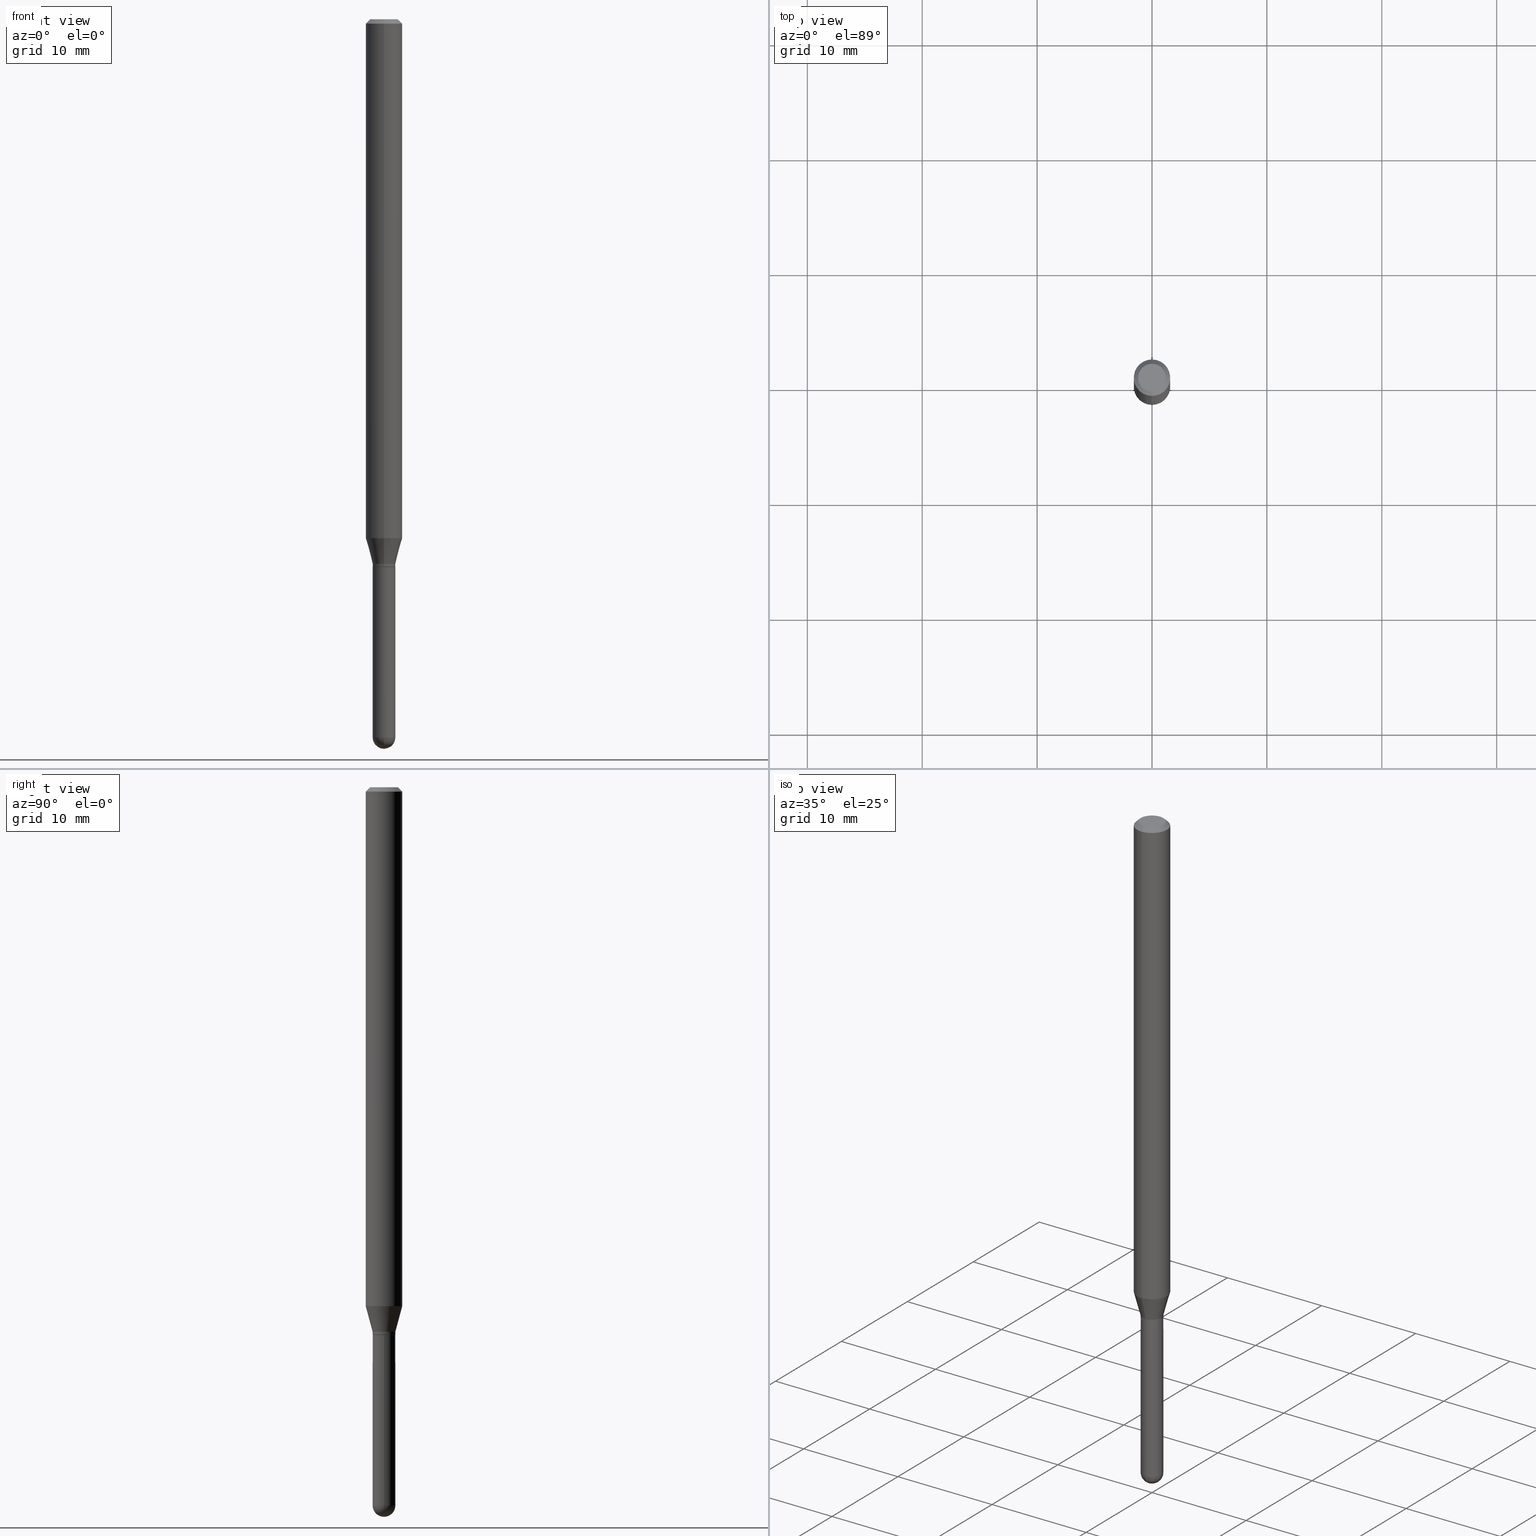
[diagram: canonical four-view strip — front | top / right | iso, engineering-drawing reading convention]
A machine part, canonical four-view strip (front | top / right | iso — engineering-drawing reading convention). The complete STEP part file that produces these views, byte-faithful:
ISO-10303-21;
HEADER;
FILE_DESCRIPTION (( 'STEP AP203' ),
    '1' );
FILE_NAME ('02764.STEP',
    '2024-03-07T21:19:49',
    ( '' ),
    ( '' ),
    'SwSTEP 2.0',
    'SolidWorks 2023',
    '' );
FILE_SCHEMA (( 'CONFIG_CONTROL_DESIGN' ));
ENDSEC;

DATA;
#1 = DIRECTION ( 'NONE',  ( -2.445468806185136597E-29, 3.491481338843145583E-15, 1.000000000000000000 ) ) ;
#2 = DIRECTION ( 'NONE',  ( -2.445445319394689421E-29, 3.491514973263850960E-15, 1.000000000000000000 ) ) ;
#3 = ADVANCED_FACE ( 'NONE', ( #484 ), #376, .T. ) ;
#4 = AXIS2_PLACEMENT_3D ( 'NONE', #266, #136, #378 ) ;
#5 = CARTESIAN_POINT ( 'NONE',  ( 2.735589532676843219E-16, 0.03849999999999344918, -1.876000000000000334 ) ) ;
#6 = DIRECTION ( 'NONE',  ( -2.445445319394689421E-29, 3.491514973263850960E-15, 1.000000000000000000 ) ) ;
#7 = AXIS2_PLACEMENT_3D ( 'NONE', #492, #26, #281 ) ;
#8 = DIRECTION ( 'NONE',  ( -2.445445319394689421E-29, 3.491514973263850960E-15, 1.000000000000000000 ) ) ;
#9 = VERTEX_POINT ( 'NONE', #100 ) ;
#10 = AXIS2_PLACEMENT_3D ( 'NONE', #206, #2, #407 ) ;
#11 = DIRECTION ( 'NONE',  ( -1.000000000000000000, 6.982962677686265922E-15, -4.883557194083112340E-29 ) ) ;
#12 = ORIENTED_EDGE ( 'NONE', *, *, #13, .T. ) ;
#13 = EDGE_CURVE ( 'NONE', #331, #55, #332, .T. ) ;
#14 = DIRECTION ( 'NONE',  ( -2.445445319394689421E-29, 3.491514973263850960E-15, 1.000000000000000000 ) ) ;
#15 = ORIENTED_EDGE ( 'NONE', *, *, #110, .T. ) ;
#16 = ORIENTED_EDGE ( 'NONE', *, *, #263, .T. ) ;
#17 = ORIENTED_EDGE ( 'NONE', *, *, #46, .F. ) ;
#18 = CIRCLE ( 'NONE', #305, 0.03899999999999999994 ) ;
#19 = AXIS2_PLACEMENT_3D ( 'NONE', #222, #429, #158 ) ;
#20 = CIRCLE ( 'NONE', #333, 0.03900000000000018729 ) ;
#21 = DIRECTION ( 'NONE',  ( -6.982962677686266711E-15, -1.000000000000000000, 3.491514973263850565E-15 ) ) ;
#22 = CARTESIAN_POINT ( 'NONE',  ( 6.014963583493821915E-29, -8.597311697409657438E-15, -2.461000000000000298 ) ) ;
#23 = FACE_OUTER_BOUND ( 'NONE', #96, .T. ) ;
#24 = FACE_OUTER_BOUND ( 'NONE', #139, .T. ) ;
#25 = CARTESIAN_POINT ( 'NONE',  ( 4.587699480403316722E-29, -6.550018991669741714E-15, -1.876000000000000112 ) ) ;
#26 = DIRECTION ( 'NONE',  ( -2.445468806185136597E-29, 3.491481338843145583E-15, 1.000000000000000000 ) ) ;
#27 = CLOSED_SHELL ( 'NONE', ( #65, #408, #128, #3, #79 ) ) ;
#28 = AXIS2_PLACEMENT_3D ( 'NONE', #359, #38, #510 ) ;
#29 = DIRECTION ( 'NONE',  ( -6.982962677686266711E-15, -1.000000000000000000, 0.000000000000000000 ) ) ;
#30 = CARTESIAN_POINT ( 'NONE',  ( 2.723355444298231876E-16, 0.03899999999999121530, -2.460999999999999854 ) ) ;
#31 = FACE_OUTER_BOUND ( 'NONE', #181, .T. ) ;
#32 = CARTESIAN_POINT ( 'NONE',  ( 4.563200965990491291E-29, -6.515166940110347716E-15, -1.866000000000000325 ) ) ;
#33 = ORIENTED_EDGE ( 'NONE', *, *, #13, .F. ) ;
#34 = CARTESIAN_POINT ( 'NONE',  ( 8.024615104273622339E-45, -1.145724403201368979E-30, -3.281453500771762015E-16 ) ) ;
#35 = APPLICATION_CONTEXT ( 'configuration controlled 3d designs of mechanical parts and assemblies' ) ;
#36 = DIRECTION ( 'NONE',  ( -2.445445319394689421E-29, 3.491514973263850960E-15, 1.000000000000000000 ) ) ;
#37 = EDGE_CURVE ( 'NONE', #67, #258, #356, .T. ) ;
#38 = DIRECTION ( 'NONE',  ( -2.445445319394689421E-29, 3.491514973263850960E-15, 1.000000000000000000 ) ) ;
#39 = ORIENTED_EDGE ( 'NONE', *, *, #441, .T. ) ;
#40 = AXIS2_PLACEMENT_3D ( 'NONE', #395, #353, #467 ) ;
#41 = VECTOR ( 'NONE', #389, 39.37007874015748143 ) ;
#42 = APPROVAL_DATE_TIME ( #249, #89 ) ;
#43 = APPLICATION_PROTOCOL_DEFINITION ( 'international standard', 'config_control_design', 1994, #133 ) ;
#44 = CARTESIAN_POINT ( 'NONE',  ( 2.771116669464859600E-16, 0.03899999999999367167, -1.866000000000000325 ) ) ;
#45 = DIRECTION ( 'NONE',  ( -2.445445319394689421E-29, 3.491514973263850960E-15, 1.000000000000000000 ) ) ;
#46 = EDGE_CURVE ( 'NONE', #258, #394, #399, .T. ) ;
#47 = PERSON_AND_ORGANIZATION ( #148, #309 ) ;
#48 = DIRECTION ( 'NONE',  ( 2.438088387897960049E-29, -3.491481338843145188E-15, -1.000000000000000000 ) ) ;
#49 = DATE_AND_TIME ( #123, #390 ) ;
#50 = CONICAL_SURFACE ( 'NONE', #282, 0.06250000000000000000, 0.7853981633974483900 ) ;
#51 = CARTESIAN_POINT ( 'NONE',  ( 4.587655419184438048E-29, -6.550082089842985666E-15, -1.876000000000000334 ) ) ;
#52 = CARTESIAN_POINT ( 'NONE',  ( 4.348727600781349997E-29, -6.208949925133558154E-15, -1.778296806022132692 ) ) ;
#53 = EDGE_CURVE ( 'NONE', #394, #482, #18, .T. ) ;
#54 = CARTESIAN_POINT ( 'NONE',  ( 8.024615104273622339E-45, -1.145724403201368979E-30, -3.281453500771762015E-16 ) ) ;
#55 = VERTEX_POINT ( 'NONE', #503 ) ;
#56 = DIRECTION ( 'NONE',  ( -1.000000000000000000, 7.105427357601001070E-15, -4.926315508542082329E-29 ) ) ;
#57 = AXIS2_PLACEMENT_3D ( 'NONE', #465, #1, #168 ) ;
#58 = ORIENTED_EDGE ( 'NONE', *, *, #46, .T. ) ;
#59 = AXIS2_PLACEMENT_3D ( 'NONE', #88, #365, #288 ) ;
#60 = APPROVAL_PERSON_ORGANIZATION ( #430, #89, #512 ) ;
#61 = EDGE_LOOP ( 'NONE', ( #416, #12 ) ) ;
#62 = CYLINDRICAL_SURFACE ( 'NONE', #493, 0.06250000000000000000 ) ;
#63 = ORIENTED_EDGE ( 'NONE', *, *, #262, .F. ) ;
#64 = ORIENTED_EDGE ( 'NONE', *, *, #423, .F. ) ;
#65 = ADVANCED_FACE ( 'NONE', ( #159 ), #308, .T. ) ;
#66 = ORIENTED_EDGE ( 'NONE', *, *, #166, .T. ) ;
#67 = VERTEX_POINT ( 'NONE', #471 ) ;
#68 = DIRECTION ( 'NONE',  ( 6.982962677686265922E-15, 1.000000000000000000, 0.000000000000000000 ) ) ;
#69 = AXIS2_PLACEMENT_3D ( 'NONE', #115, #299, #163 ) ;
#70 = PRODUCT_DEFINITION_SHAPE ( 'NONE', 'NONE',  #450 ) ;
#71 = FACE_OUTER_BOUND ( 'NONE', #220, .T. ) ;
#72 = LINE ( 'NONE', #80, #162 ) ;
#73 = EDGE_LOOP ( 'NONE', ( #271, #257, #17, #397 ) ) ;
#74 = ORIENTED_EDGE ( 'NONE', *, *, #449, .F. ) ;
#75 = CIRCLE ( 'NONE', #69, 0.06250000000000000000 ) ;
#76 = CARTESIAN_POINT ( 'NONE',  ( -4.364351673553483807E-16, -0.06250000000000624500, -1.778296806022132470 ) ) ;
#77 = DIRECTION ( 'NONE',  ( -2.445468806185136597E-29, 3.491481338843145583E-15, 1.000000000000000000 ) ) ;
#78 = DIRECTION ( 'NONE',  ( -2.445445319394689421E-29, 3.491514973263850960E-15, 1.000000000000000000 ) ) ;
#79 = ADVANCED_FACE ( 'NONE', ( #314 ), #81, .T. ) ;
#80 = CARTESIAN_POINT ( 'NONE',  ( -4.364351673553916201E-16, -0.06250000000000000000, 2.182196858289906850E-16 ) ) ;
#81 = CYLINDRICAL_SURFACE ( 'NONE', #338, 0.03899999999999999994 ) ;
#82 = AXIS2_PLACEMENT_3D ( 'NONE', #54, #134, #260 ) ;
#83 = CALENDAR_DATE ( 2024, 7, 3 ) ;
#84 = ADVANCED_FACE ( 'NONE', ( #111 ), #62, .T. ) ;
#85 = PERSON_AND_ORGANIZATION_ROLE ( 'classification_officer' ) ;
#86 = LINE ( 'NONE', #254, #99 ) ;
#87 = PERSON_AND_ORGANIZATION_ROLE ( 'creator' ) ;
#88 = CARTESIAN_POINT ( 'NONE',  ( 4.563200965990491291E-29, -6.515166940110347716E-15, -1.866000000000000325 ) ) ;
#89 = APPROVAL ( #468, 'UNSPECIFIED' ) ;
#90 = AXIS2_PLACEMENT_3D ( 'NONE', #284, #8, #176 ) ;
#91 = PRODUCT_DEFINITION_FORMATION_WITH_SPECIFIED_SOURCE ( 'ANY', '', #478, .NOT_KNOWN. ) ;
#92 = ORIENTED_EDGE ( 'NONE', *, *, #232, .T. ) ;
#93 = VERTEX_POINT ( 'NONE', #241 ) ;
#94 = CARTESIAN_POINT ( 'NONE',  ( 2.723355444298102207E-16, 0.03899999999999344963, -1.876000000000000112 ) ) ;
#95 = CIRCLE ( 'NONE', #237, 0.03899999999999961831 ) ;
#96 = EDGE_LOOP ( 'NONE', ( #427, #294, #489, #261 ) ) ;
#97 = EDGE_CURVE ( 'NONE', #452, #67, #95, .T. ) ;
#98 = CC_DESIGN_PERSON_AND_ORGANIZATION_ASSIGNMENT ( #398, #87, ( #450 ) ) ;
#99 = VECTOR ( 'NONE', #103, 39.37007874015748143 ) ;
#100 = CARTESIAN_POINT ( 'NONE',  ( 0.03899999999999999994, -6.822354536099505737E-15, -1.876000000000000112 ) ) ;
#101 = EDGE_LOOP ( 'NONE', ( #195, #253, #189, #178 ) ) ;
#102 = CARTESIAN_POINT ( 'NONE',  ( 6.014963583493821915E-29, -8.597311697409657438E-15, -2.461000000000000298 ) ) ;
#103 = DIRECTION ( 'NONE',  ( -4.851104656540964275E-15, -0.7071067811865500152, -0.7071067811865450192 ) ) ;
#104 = UNCERTAINTY_MEASURE_WITH_UNIT (LENGTH_MEASURE( 1.000000000000000082E-05 ), #233, 'distance_accuracy_value', 'NONE');
#105 = CARTESIAN_POINT ( 'NONE',  ( 4.587655419184438048E-29, -6.550082089842985666E-15, -1.876000000000000334 ) ) ;
#106 = VERTEX_POINT ( 'NONE', #445 ) ;
#107 = AXIS2_PLACEMENT_3D ( 'NONE', #196, #154, #295 ) ;
#108 = DIRECTION ( 'NONE',  ( -1.807323732225330139E-15, -0.2588190451025181860, 0.9659258262890689783 ) ) ;
#109 = LOCAL_TIME ( 16, 19, 49.00000000000000000, #170 ) ;
#110 = EDGE_CURVE ( 'NONE', #186, #221, #321, .T. ) ;
#111 = FACE_OUTER_BOUND ( 'NONE', #286, .T. ) ;
#112 = DIRECTION ( 'NONE',  ( 2.445445319394689421E-29, -3.491514973263850960E-15, -1.000000000000000000 ) ) ;
#113 = EDGE_LOOP ( 'NONE', ( #290, #287, #367, #302, #58 ) ) ;
#114 = DIRECTION ( 'NONE',  ( 4.937700262164548042E-15, 0.7071067811865451302, -0.7071067811865499042 ) ) ;
#115 = CARTESIAN_POINT ( 'NONE',  ( 3.668167979092114251E-31, -5.237272459895891490E-17, -0.01500000000000032904 ) ) ;
#116 = AXIS2_PLACEMENT_3D ( 'NONE', #34, #45, #303 ) ;
#117 = CIRCLE ( 'NONE', #358, 0.03900000000000019423 ) ;
#118 = DIRECTION ( 'NONE',  ( -6.982962677686266711E-15, -1.000000000000000000, 0.000000000000000000 ) ) ;
#119 = ADVANCED_FACE ( 'NONE', ( #251 ), #223, .T. ) ;
#120 = CARTESIAN_POINT ( 'NONE',  ( 6.018298732021620914E-29, -8.592535574892981353E-15, -2.460999999999999854 ) ) ;
#121 = APPROVAL_ROLE ( '' ) ;
#122 = PLANE ( 'NONE',  #160 ) ;
#123 = CALENDAR_DATE ( 2024, 7, 3 ) ;
#124 = PERSON_AND_ORGANIZATION_ROLE ( 'design_supplier' ) ;
#125 = LINE ( 'NONE', #280, #470 ) ;
#126 = CARTESIAN_POINT ( 'NONE',  ( 2.753353101070852642E-16, 0.03849999999999344918, -1.876000000000000334 ) ) ;
#127 = CARTESIAN_POINT ( 'NONE',  ( 0.03899999999999999994, -2.723355444297643682E-16, 1.901708942560414931E-30 ) ) ;
#128 = ADVANCED_FACE ( 'NONE', ( #211 ), #122, .F. ) ;
#129 = SECURITY_CLASSIFICATION_LEVEL ( 'unclassified' ) ;
#130 = AXIS2_PLACEMENT_3D ( 'NONE', #51, #215, #327 ) ;
#131 = CIRCLE ( 'NONE', #248, 0.03899999999999999994 ) ;
#132 = EDGE_LOOP ( 'NONE', ( #269, #347, #174, #143 ) ) ;
#133 = APPLICATION_CONTEXT ( 'configuration controlled 3d designs of mechanical parts and assemblies' ) ;
#134 = DIRECTION ( 'NONE',  ( -2.445445319394689421E-29, 3.491514973263850960E-15, 1.000000000000000000 ) ) ;
#135 = DIRECTION ( 'NONE',  ( -6.982962677686265922E-15, -1.000000000000000000, 4.370956789862821150E-15 ) ) ;
#136 = DIRECTION ( 'NONE',  ( -2.445445319394689141E-29, 3.491514973263850960E-15, 1.000000000000000000 ) ) ;
#137 = EDGE_CURVE ( 'NONE', #485, #156, #369, .T. ) ;
#138 = ORIENTED_EDGE ( 'NONE', *, *, #272, .F. ) ;
#139 = EDGE_LOOP ( 'NONE', ( #39, #352, #64, #291 ) ) ;
#140 = CIRCLE ( 'NONE', #10, 0.03900000000000018729 ) ;
#141 = APPROVAL_PERSON_ORGANIZATION ( #47, #243, #276 ) ;
#142 = ORIENTED_EDGE ( 'NONE', *, *, #511, .T. ) ;
#143 = ORIENTED_EDGE ( 'NONE', *, *, #201, .F. ) ;
#144 = EDGE_CURVE ( 'NONE', #258, #9, #172, .T. ) ;
#145 = DIRECTION ( 'NONE',  ( -2.445445319394689421E-29, 3.491514973263850960E-15, 1.000000000000000000 ) ) ;
#146 = ORIENTED_EDGE ( 'NONE', *, *, #214, .T. ) ;
#147 = CYLINDRICAL_SURFACE ( 'NONE', #370, 0.03900000000000018729 ) ;
#148 = PERSON ( 'UNSPECIFIED', 'UNSPECIFIED', 'UNSPECIFIED', ('UNSPECIFIED'), ('UNSPECIFIED'), ('UNSPECIFIED') ) ;
#149 = DIRECTION ( 'NONE',  ( -2.445445319394689421E-29, 3.491514973263850960E-15, 1.000000000000000000 ) ) ;
#150 = AXIS2_PLACEMENT_3D ( 'NONE', #120, #77, #231 ) ;
#151 = DIRECTION ( 'NONE',  ( -6.982962677686266711E-15, -1.000000000000000000, 0.000000000000000000 ) ) ;
#152 = SPHERICAL_SURFACE ( 'NONE', #289, 0.03899999999999961831 ) ;
#153 = CARTESIAN_POINT ( 'NONE',  ( 4.364351673553919652E-16, 0.06249999999999995143, -0.01500000000000054588 ) ) ;
#154 = DIRECTION ( 'NONE',  ( -2.445445319394689421E-29, 3.491514973263850960E-15, 1.000000000000000000 ) ) ;
#155 = CC_DESIGN_DATE_AND_TIME_ASSIGNMENT ( #316, #313, ( #450 ) ) ;
#156 = VERTEX_POINT ( 'NONE', #439 ) ;
#157 = DIRECTION ( 'NONE',  ( -2.445445319394689421E-29, 3.491514973263850960E-15, 1.000000000000000000 ) ) ;
#158 = DIRECTION ( 'NONE',  ( 6.982962677686265922E-15, 1.000000000000000000, -3.491514973263850960E-15 ) ) ;
#159 = FACE_OUTER_BOUND ( 'NONE', #113, .T. ) ;
#160 = AXIS2_PLACEMENT_3D ( 'NONE', #94, #48, #409 ) ;
#161 = CARTESIAN_POINT ( 'NONE',  ( 4.563200965990491291E-29, -6.515166940110347716E-15, -1.866000000000000325 ) ) ;
#162 = VECTOR ( 'NONE', #462, 39.37007874015748143 ) ;
#163 = DIRECTION ( 'NONE',  ( -6.982962677686265922E-15, -1.000000000000000000, 3.483106191921935554E-15 ) ) ;
#164 = LINE ( 'NONE', #44, #418 ) ;
#165 = DATE_TIME_ROLE ( 'classification_date' ) ;
#166 = EDGE_CURVE ( 'NONE', #482, #67, #264, .T. ) ;
#167 = CALENDAR_DATE ( 2024, 7, 3 ) ;
#168 = DIRECTION ( 'NONE',  ( 1.000000000000000000, -6.982962677686265922E-15, 4.876176775795935793E-29 ) ) ;
#169 = VECTOR ( 'NONE', #114, 39.37007874015748143 ) ;
#170 = COORDINATED_UNIVERSAL_TIME_OFFSET ( 5, 0, .BEHIND. ) ;
#171 = SECURITY_CLASSIFICATION ( '', '', #129 ) ;
#172 = LINE ( 'NONE', #127, #477 ) ;
#173 = COORDINATED_UNIVERSAL_TIME_OFFSET ( 5, 0, .BEHIND. ) ;
#174 = ORIENTED_EDGE ( 'NONE', *, *, #312, .T. ) ;
#175 = AXIS2_PLACEMENT_3D ( 'NONE', #52, #212, #500 ) ;
#176 = DIRECTION ( 'NONE',  ( -6.982962677686266711E-15, -1.000000000000000000, 0.000000000000000000 ) ) ;
#177 = EDGE_LOOP ( 'NONE', ( #320, #142 ) ) ;
#178 = ORIENTED_EDGE ( 'NONE', *, *, #368, .F. ) ;
#179 = EDGE_LOOP ( 'NONE', ( #421, #66, #326, #270, #387 ) ) ;
#180 = EDGE_CURVE ( 'NONE', #55, #331, #296, .T. ) ;
#181 = EDGE_LOOP ( 'NONE', ( #411, #415, #341, #451 ) ) ;
#182 = ORIENTED_EDGE ( 'NONE', *, *, #423, .T. ) ;
#183 = AXIS2_PLACEMENT_3D ( 'NONE', #383, #78, #297 ) ;
#184 = CARTESIAN_POINT ( 'NONE',  ( 0.03899999999999999994, -7.843612827711125557E-15, -2.460999999999999854 ) ) ;
#185 = DIRECTION ( 'NONE',  ( -2.445445319394689421E-29, 3.491514973263850960E-15, 1.000000000000000000 ) ) ;
#186 = VERTEX_POINT ( 'NONE', #420 ) ;
#187 = PLANE ( 'NONE',  #4 ) ;
#188 = DIRECTION ( 'NONE',  ( 6.982962677686265922E-15, 1.000000000000000000, -3.483106191921935554E-15 ) ) ;
#189 = ORIENTED_EDGE ( 'NONE', *, *, #262, .T. ) ;
#190 = EDGE_CURVE ( 'NONE', #9, #93, #273, .T. ) ;
#191 = CARTESIAN_POINT ( 'NONE',  ( 0.000000000000000000, 0.000000000000000000, 0.000000000000000000 ) ) ;
#192 = DIRECTION ( 'NONE',  ( 1.000000000000000000, -6.982962677686265922E-15, 4.883557194083112340E-29 ) ) ;
#193 = CARTESIAN_POINT ( 'NONE',  ( 3.668167979092114251E-31, -5.237272459895891490E-17, -0.01500000000000032904 ) ) ;
#194 = DIRECTION ( 'NONE',  ( -2.445445319394689421E-29, 3.491514973263850960E-15, 1.000000000000000000 ) ) ;
#195 = ORIENTED_EDGE ( 'NONE', *, *, #232, .F. ) ;
#196 = CARTESIAN_POINT ( 'NONE',  ( 0.000000000000000000, 0.000000000000000000, 0.000000000000000000 ) ) ;
#197 = APPROVAL_PERSON_ORGANIZATION ( #472, #444, #121 ) ;
#198 = EDGE_CURVE ( 'NONE', #452, #394, #380, .T. ) ;
#199 = CARTESIAN_POINT ( 'NONE',  ( 3.606004383982960804E-16, 0.03899999999999367167, -1.866000000000000325 ) ) ;
#200 = FACE_OUTER_BOUND ( 'NONE', #443, .T. ) ;
#201 = EDGE_CURVE ( 'NONE', #486, #324, #140, .T. ) ;
#202 = CARTESIAN_POINT ( 'NONE',  ( -0.03899999999999999994, -7.294165616334921426E-15, -2.460999999999999854 ) ) ;
#203 = DIRECTION ( 'NONE',  ( -2.445468806185136597E-29, 3.491481338843145583E-15, 1.000000000000000000 ) ) ;
#204 = CARTESIAN_POINT ( 'NONE',  ( 2.771116669464852698E-16, 0.03899999999999351208, -1.875500000000000167 ) ) ;
#205 = CIRCLE ( 'NONE', #210, 0.06250000000000000000 ) ;
#206 = CARTESIAN_POINT ( 'NONE',  ( 4.563200965990491291E-29, -6.515166940110347716E-15, -1.866000000000000325 ) ) ;
#207 = CARTESIAN_POINT ( 'NONE',  ( 6.014963583493821915E-29, -8.597311697409657438E-15, -2.461000000000000298 ) ) ;
#208 = COORDINATED_UNIVERSAL_TIME_OFFSET ( 5, 0, .BEHIND. ) ;
#209 = LINE ( 'NONE', #5, #447 ) ;
#210 = AXIS2_PLACEMENT_3D ( 'NONE', #323, #481, #135 ) ;
#211 = FACE_OUTER_BOUND ( 'NONE', #177, .T. ) ;
#212 = DIRECTION ( 'NONE',  ( -2.445445319394689421E-29, 3.491514973263850960E-15, 1.000000000000000000 ) ) ;
#213 = PERSON_AND_ORGANIZATION ( #148, #309 ) ;
#214 = EDGE_CURVE ( 'NONE', #508, #485, #425, .T. ) ;
#215 = DIRECTION ( 'NONE',  ( -2.445445319394689421E-29, 3.491514973263850960E-15, 1.000000000000000000 ) ) ;
#216 = EDGE_LOOP ( 'NONE', ( #366, #252, #375, #379 ) ) ;
#217 = PRODUCT_RELATED_PRODUCT_CATEGORY ( 'detail', '', ( #478 ) ) ;
#218 = DIRECTION ( 'NONE',  ( -2.445445319394689421E-29, 3.491514973263850960E-15, 1.000000000000000000 ) ) ;
#219 = AXIS2_PLACEMENT_3D ( 'NONE', #105, #194, #422 ) ;
#220 = EDGE_LOOP ( 'NONE', ( #182, #92, #334, #63 ) ) ;
#221 = VERTEX_POINT ( 'NONE', #126 ) ;
#222 = CARTESIAN_POINT ( 'NONE',  ( 3.316907271900976096E-16, 0.04749999999999999362, -3.299196362686209740E-16 ) ) ;
#223 = CONICAL_SURFACE ( 'NONE', #130, 0.03849999999999999256, 0.7853981633974739252 ) ;
#224 = VECTOR ( 'NONE', #108, 39.37007874015748143 ) ;
#225 = FACE_OUTER_BOUND ( 'NONE', #216, .T. ) ;
#226 = ORIENTED_EDGE ( 'NONE', *, *, #454, .F. ) ;
#227 = CC_DESIGN_PERSON_AND_ORGANIZATION_ASSIGNMENT ( #349, #339, ( #478 ) ) ;
#228 = DIRECTION ( 'NONE',  ( -2.445468806185136597E-29, 3.491481338843145583E-15, 1.000000000000000000 ) ) ;
#229 = CARTESIAN_POINT ( 'NONE',  ( -2.688440630908753113E-16, -0.03850000000000654288, -1.876000000000000334 ) ) ;
#230 = DIRECTION ( 'NONE',  ( 1.000000000000000000, 0.000000000000000000, 0.000000000000000000 ) ) ;
#231 = DIRECTION ( 'NONE',  ( 1.000000000000000000, -6.982962677686283277E-15, 0.000000000000000000 ) ) ;
#232 = EDGE_CURVE ( 'NONE', #486, #485, #164, .T. ) ;
#233 =( CONVERSION_BASED_UNIT ( 'INCH', #393 ) LENGTH_UNIT ( ) NAMED_UNIT ( #507 ) );
#234 = PERSON_AND_ORGANIZATION ( #148, #309 ) ;
#235 = ORIENTED_EDGE ( 'NONE', *, *, #110, .F. ) ;
#236 = EDGE_CURVE ( 'NONE', #331, #106, #86, .T. ) ;
#237 = AXIS2_PLACEMENT_3D ( 'NONE', #207, #56, #245 ) ;
#238 = CONICAL_SURFACE ( 'NONE', #219, 0.03849999999999999256, 0.7853981633974739252 ) ;
#239 = ADVANCED_BREP_SHAPE_REPRESENTATION ( '02764', ( #329, #317, #413 ), #340 ) ;
#240 = COORDINATED_UNIVERSAL_TIME_OFFSET ( 5, 0, .BEHIND. ) ;
#241 = CARTESIAN_POINT ( 'NONE',  ( -0.03899999999999999994, -7.294165616334921426E-15, -1.876000000000000112 ) ) ;
#242 = DATE_AND_TIME ( #436, #488 ) ;
#243 = APPROVAL ( #318, 'UNSPECIFIED' ) ;
#244 = PERSON_AND_ORGANIZATION ( #148, #309 ) ;
#245 = DIRECTION ( 'NONE',  ( -7.105427357601000281E-15, -1.000000000000000000, 0.000000000000000000 ) ) ;
#246 = AXIS2_PLACEMENT_3D ( 'NONE', #102, #259, #68 ) ;
#247 = PLANE ( 'NONE',  #19 ) ;
#248 = AXIS2_PLACEMENT_3D ( 'NONE', #267, #228, #501 ) ;
#249 = DATE_AND_TIME ( #167, #480 ) ;
#250 = VERTEX_POINT ( 'NONE', #491 ) ;
#251 = FACE_OUTER_BOUND ( 'NONE', #256, .T. ) ;
#252 = ORIENTED_EDGE ( 'NONE', *, *, #180, .F. ) ;
#253 = ORIENTED_EDGE ( 'NONE', *, *, #201, .T. ) ;
#254 = CARTESIAN_POINT ( 'NONE',  ( -4.287811248607203282E-16, -0.06250000000000005551, -0.01500000000000011047 ) ) ;
#255 = DIRECTION ( 'NONE',  ( 6.982962677686265922E-15, 1.000000000000000000, 0.000000000000000000 ) ) ;
#256 = EDGE_LOOP ( 'NONE', ( #15, #412, #446, #448 ) ) ;
#257 = ORIENTED_EDGE ( 'NONE', *, *, #198, .T. ) ;
#258 = VERTEX_POINT ( 'NONE', #184 ) ;
#259 = DIRECTION ( 'NONE',  ( -1.000000000000000000, 6.982962677686265922E-15, -4.883557194083112340E-29 ) ) ;
#260 = DIRECTION ( 'NONE',  ( -6.982962677686266711E-15, -1.000000000000000000, 3.491514973263851354E-15 ) ) ;
#261 = ORIENTED_EDGE ( 'NONE', *, *, #473, .F. ) ;
#262 = EDGE_CURVE ( 'NONE', #324, #508, #310, .T. ) ;
#263 = EDGE_CURVE ( 'NONE', #221, #186, #504, .T. ) ;
#264 = CIRCLE ( 'NONE', #7, 0.03899999999999999994 ) ;
#265 = ORIENTED_EDGE ( 'NONE', *, *, #137, .T. ) ;
#266 = CARTESIAN_POINT ( 'NONE',  ( 4.587655419184438048E-29, -6.550082089842985666E-15, -1.876000000000000334 ) ) ;
#267 = CARTESIAN_POINT ( 'NONE',  ( 4.587699480403316722E-29, -6.550018991669741714E-15, -1.876000000000000112 ) ) ;
#268 = DIRECTION ( 'NONE',  ( -2.445468806185136597E-29, 3.491481338843145583E-15, 1.000000000000000000 ) ) ;
#269 = ORIENTED_EDGE ( 'NONE', *, *, #311, .F. ) ;
#270 = ORIENTED_EDGE ( 'NONE', *, *, #144, .T. ) ;
#271 = ORIENTED_EDGE ( 'NONE', *, *, #97, .F. ) ;
#272 = EDGE_CURVE ( 'NONE', #221, #502, #209, .T. ) ;
#273 = CIRCLE ( 'NONE', #438, 0.03899999999999999994 ) ;
#274 = CARTESIAN_POINT ( 'NONE',  ( 4.586432696524740374E-29, -6.548336332356352861E-15, -1.875500000000000167 ) ) ;
#275 = APPLICATION_PROTOCOL_DEFINITION ( 'international standard', 'config_control_design', 1994, #35 ) ;
#276 = APPROVAL_ROLE ( '' ) ;
#277 = AXIS2_PLACEMENT_3D ( 'NONE', #474, #218, #405 ) ;
#278 = DIRECTION ( 'NONE',  ( 1.839019923739600315E-15, 0.2588190451025249583, 0.9659258262890670910 ) ) ;
#279 = EDGE_CURVE ( 'NONE', #482, #93, #125, .T. ) ;
#280 = CARTESIAN_POINT ( 'NONE',  ( -0.03899999999999999994, 2.771116669464390721E-16, -1.918384685199413078E-30 ) ) ;
#281 = DIRECTION ( 'NONE',  ( 1.000000000000000000, -6.982962677686283277E-15, 0.000000000000000000 ) ) ;
#282 = AXIS2_PLACEMENT_3D ( 'NONE', #193, #112, #437 ) ;
#283 = CC_DESIGN_SECURITY_CLASSIFICATION ( #171, ( #91 ) ) ;
#284 = CARTESIAN_POINT ( 'NONE',  ( 4.586432696524740374E-29, -6.548336332356352861E-15, -1.875500000000000167 ) ) ;
#285 = ORIENTED_EDGE ( 'NONE', *, *, #263, .F. ) ;
#286 = EDGE_LOOP ( 'NONE', ( #146, #265, #483, #226 ) ) ;
#287 = ORIENTED_EDGE ( 'NONE', *, *, #279, .T. ) ;
#288 = DIRECTION ( 'NONE',  ( -6.982962677686266711E-15, -1.000000000000000000, 0.000000000000000000 ) ) ;
#289 = AXIS2_PLACEMENT_3D ( 'NONE', #350, #11, #255 ) ;
#290 = ORIENTED_EDGE ( 'NONE', *, *, #53, .T. ) ;
#291 = ORIENTED_EDGE ( 'NONE', *, *, #312, .F. ) ;
#292 = ADVANCED_FACE ( 'NONE', ( #71 ), #432, .T. ) ;
#293 = DESIGN_CONTEXT ( 'detailed design', #133, 'design' ) ;
#294 = ORIENTED_EDGE ( 'NONE', *, *, #368, .T. ) ;
#295 = DIRECTION ( 'NONE',  ( -6.982962677686265922E-15, -1.000000000000000000, 3.491514973263850960E-15 ) ) ;
#296 = CIRCLE ( 'NONE', #82, 0.04749999999999999362 ) ;
#297 = DIRECTION ( 'NONE',  ( -6.982962677686265922E-15, -1.000000000000000000, 3.483106191921935554E-15 ) ) ;
#298 = CYLINDRICAL_SURFACE ( 'NONE', #107, 0.06250000000000000000 ) ;
#299 = DIRECTION ( 'NONE',  ( -2.445445319394689421E-29, 3.491514973263850960E-15, 1.000000000000000000 ) ) ;
#300 = DIRECTION ( 'NONE',  ( 6.982962677686267499E-15, 1.000000000000000000, 0.000000000000000000 ) ) ;
#301 =( LENGTH_UNIT ( ) NAMED_UNIT ( * ) SI_UNIT ( $, .METRE. ) );
#302 = ORIENTED_EDGE ( 'NONE', *, *, #144, .F. ) ;
#303 = DIRECTION ( 'NONE',  ( -6.982962677686266711E-15, -1.000000000000000000, 3.491514973263851354E-15 ) ) ;
#304 = LINE ( 'NONE', #153, #169 ) ;
#305 = AXIS2_PLACEMENT_3D ( 'NONE', #497, #203, #461 ) ;
#306 = ADVANCED_FACE ( 'NONE', ( #386 ), #238, .T. ) ;
#307 = VECTOR ( 'NONE', #145, 39.37007874015748143 ) ;
#308 = CYLINDRICAL_SURFACE ( 'NONE', #57, 0.03899999999999999994 ) ;
#309 = ORGANIZATION ( 'UNSPECIFIED', 'UNSPECIFIED', '' ) ;
#310 = LINE ( 'NONE', #391, #224 ) ;
#311 = EDGE_CURVE ( 'NONE', #502, #486, #346, .T. ) ;
#312 = EDGE_CURVE ( 'NONE', #250, #324, #495, .T. ) ;
#313 = DATE_TIME_ROLE ( 'creation_date' ) ;
#314 = FACE_OUTER_BOUND ( 'NONE', #179, .T. ) ;
#315 = CONICAL_SURFACE ( 'NONE', #59, 0.03900000000000018729, 0.2617993877991502960 ) ;
#316 = DATE_AND_TIME ( #509, #109 ) ;
#317 = MANIFOLD_SOLID_BREP ( 'Body-Move/Copy2[2]', #361 ) ;
#318 = APPROVAL_STATUS ( 'not_yet_approved' ) ;
#319 = SHAPE_DEFINITION_REPRESENTATION ( #70, #239 ) ;
#320 = ORIENTED_EDGE ( 'NONE', *, *, #190, .T. ) ;
#321 = CIRCLE ( 'NONE', #277, 0.03849999999999999256 ) ;
#322 = CIRCLE ( 'NONE', #90, 0.03900000000000019423 ) ;
#323 = CARTESIAN_POINT ( 'NONE',  ( 4.348727600781349997E-29, -6.208949925133558154E-15, -1.778296806022132692 ) ) ;
#324 = VERTEX_POINT ( 'NONE', #457 ) ;
#325 = ORIENTED_EDGE ( 'NONE', *, *, #388, .T. ) ;
#326 = ORIENTED_EDGE ( 'NONE', *, *, #37, .T. ) ;
#327 = DIRECTION ( 'NONE',  ( -6.982962677686266711E-15, -1.000000000000000000, 0.000000000000000000 ) ) ;
#328 = ADVANCED_FACE ( 'NONE', ( #225 ), #50, .T. ) ;
#329 = MANIFOLD_SOLID_BREP ( 'Body-Move/Copy2[1]', #27 ) ;
#330 = DIRECTION ( 'NONE',  ( -6.982962677686265922E-15, -1.000000000000000000, 3.491514973263850960E-15 ) ) ;
#331 = VERTEX_POINT ( 'NONE', #344 ) ;
#332 = CIRCLE ( 'NONE', #116, 0.04749999999999999362 ) ;
#333 = AXIS2_PLACEMENT_3D ( 'NONE', #161, #157, #458 ) ;
#334 = ORIENTED_EDGE ( 'NONE', *, *, #214, .F. ) ;
#335 = ORIENTED_EDGE ( 'NONE', *, *, #464, .T. ) ;
#336 = CARTESIAN_POINT ( 'NONE',  ( 2.771116669464403047E-16, 0.03900000000000018729, -1.361690839572908232E-16 ) ) ;
#337 = ORIENTED_EDGE ( 'NONE', *, *, #357, .F. ) ;
#338 = AXIS2_PLACEMENT_3D ( 'NONE', #342, #268, #414 ) ;
#339 = PERSON_AND_ORGANIZATION_ROLE ( 'design_owner' ) ;
#340 =( GEOMETRIC_REPRESENTATION_CONTEXT ( 3 ) GLOBAL_UNCERTAINTY_ASSIGNED_CONTEXT ( ( #104 ) ) GLOBAL_UNIT_ASSIGNED_CONTEXT ( ( #233, #456, #505 ) ) REPRESENTATION_CONTEXT ( 'NONE', 'WORKASPACE' ) );
#341 = ORIENTED_EDGE ( 'NONE', *, *, #166, .F. ) ;
#342 = CARTESIAN_POINT ( 'NONE',  ( 0.000000000000000000, 0.000000000000000000, 0.000000000000000000 ) ) ;
#343 = ADVANCED_FACE ( 'NONE', ( #498 ), #247, .F. ) ;
#344 = CARTESIAN_POINT ( 'NONE',  ( -3.773273898774340269E-16, -0.04749999999999999362, -1.622983888471432790E-16 ) ) ;
#345 = FACE_OUTER_BOUND ( 'NONE', #496, .T. ) ;
#346 = LINE ( 'NONE', #336, #307 ) ;
#347 = ORIENTED_EDGE ( 'NONE', *, *, #357, .T. ) ;
#348 = CARTESIAN_POINT ( 'NONE',  ( 4.587655419184438048E-29, -6.550082089842985666E-15, -1.876000000000000334 ) ) ;
#349 = PERSON_AND_ORGANIZATION ( #148, #309 ) ;
#350 = CARTESIAN_POINT ( 'NONE',  ( 6.014963583493821915E-29, -8.597311697409657438E-15, -2.461000000000000298 ) ) ;
#351 = ADVANCED_FACE ( 'NONE', ( #396 ), #355, .T. ) ;
#352 = ORIENTED_EDGE ( 'NONE', *, *, #311, .T. ) ;
#353 = DIRECTION ( 'NONE',  ( -2.445468806185136597E-29, 3.491481338843145583E-15, 1.000000000000000000 ) ) ;
#354 = DIRECTION ( 'NONE',  ( 2.445445319394689421E-29, -3.491514973263850960E-15, -1.000000000000000000 ) ) ;
#355 = CYLINDRICAL_SURFACE ( 'NONE', #28, 0.03900000000000018729 ) ;
#356 = CIRCLE ( 'NONE', #150, 0.03899999999999999994 ) ;
#357 = EDGE_CURVE ( 'NONE', #502, #250, #322, .T. ) ;
#358 = AXIS2_PLACEMENT_3D ( 'NONE', #274, #494, #29 ) ;
#359 = CARTESIAN_POINT ( 'NONE',  ( 0.000000000000000000, 0.000000000000000000, 0.000000000000000000 ) ) ;
#360 = APPROVAL_STATUS ( 'not_yet_approved' ) ;
#361 = CLOSED_SHELL ( 'NONE', ( #469, #119, #490, #84, #292, #410, #372, #328, #343, #377, #306, #351 ) ) ;
#362 = AXIS2_PLACEMENT_3D ( 'NONE', #32, #185, #118 ) ;
#363 = CARTESIAN_POINT ( 'NONE',  ( 4.440892098500625669E-16, 0.06250000000000000000, -2.182196858289906850E-16 ) ) ;
#364 = APPROVAL_DATE_TIME ( #49, #444 ) ;
#365 = DIRECTION ( 'NONE',  ( -2.445445319394689421E-29, 3.491514973263850960E-15, 1.000000000000000000 ) ) ;
#366 = ORIENTED_EDGE ( 'NONE', *, *, #236, .F. ) ;
#367 = ORIENTED_EDGE ( 'NONE', *, *, #190, .F. ) ;
#368 = EDGE_CURVE ( 'NONE', #485, #508, #205, .T. ) ;
#369 = LINE ( 'NONE', #363, #417 ) ;
#370 = AXIS2_PLACEMENT_3D ( 'NONE', #191, #36, #21 ) ;
#371 = EDGE_LOOP ( 'NONE', ( #138, #16, #325, #337 ) ) ;
#372 = ADVANCED_FACE ( 'NONE', ( #23 ), #298, .T. ) ;
#373 = CC_DESIGN_PERSON_AND_ORGANIZATION_ASSIGNMENT ( #213, #124, ( #91 ) ) ;
#374 = CARTESIAN_POINT ( 'NONE',  ( 0.000000000000000000, 0.000000000000000000, 0.000000000000000000 ) ) ;
#375 = ORIENTED_EDGE ( 'NONE', *, *, #449, .T. ) ;
#376 = SPHERICAL_SURFACE ( 'NONE', #246, 0.03899999999999961831 ) ;
#377 = ADVANCED_FACE ( 'NONE', ( #200 ), #187, .F. ) ;
#378 = DIRECTION ( 'NONE',  ( -6.982962677686265922E-15, -1.000000000000000000, 3.491514973263850960E-15 ) ) ;
#379 = ORIENTED_EDGE ( 'NONE', *, *, #473, .T. ) ;
#380 = CIRCLE ( 'NONE', #400, 0.03899999999999961831 ) ;
#381 = DIRECTION ( 'NONE',  ( -2.445468806185136597E-29, 3.491481338843145583E-15, 1.000000000000000000 ) ) ;
#382 = CC_DESIGN_APPROVAL ( #444, ( #91 ) ) ;
#383 = CARTESIAN_POINT ( 'NONE',  ( 3.668167979092114251E-31, -5.237272459895891490E-17, -0.01500000000000032904 ) ) ;
#384 = DIRECTION ( 'NONE',  ( -2.445445319394689421E-29, 3.491514973263850960E-15, 1.000000000000000000 ) ) ;
#385 = CARTESIAN_POINT ( 'NONE',  ( 6.112004441198941993E-29, -8.731091408366201407E-15, -2.500000000000000000 ) ) ;
#386 = FACE_OUTER_BOUND ( 'NONE', #371, .T. ) ;
#387 = ORIENTED_EDGE ( 'NONE', *, *, #511, .F. ) ;
#388 = EDGE_CURVE ( 'NONE', #186, #250, #459, .T. ) ;
#389 = DIRECTION ( 'NONE',  ( -4.937700262164674260E-15, -0.7071067811865632269, 0.7071067811865319186 ) ) ;
#390 = LOCAL_TIME ( 16, 19, 49.00000000000000000, #240 ) ;
#391 = CARTESIAN_POINT ( 'NONE',  ( -2.723355444297200441E-16, -0.03900000000000669598, -1.866000000000000325 ) ) ;
#392 = CC_DESIGN_DATE_AND_TIME_ASSIGNMENT ( #242, #165, ( #171 ) ) ;
#393 = LENGTH_MEASURE_WITH_UNIT ( LENGTH_MEASURE( 0.02539999999999999897 ), #301 );
#394 = VERTEX_POINT ( 'NONE', #30 ) ;
#395 = CARTESIAN_POINT ( 'NONE',  ( 6.018298732021620914E-29, -8.592535574892981353E-15, -2.460999999999999854 ) ) ;
#396 = FACE_OUTER_BOUND ( 'NONE', #132, .T. ) ;
#397 = ORIENTED_EDGE ( 'NONE', *, *, #37, .F. ) ;
#398 = PERSON_AND_ORGANIZATION ( #148, #309 ) ;
#399 = CIRCLE ( 'NONE', #40, 0.03899999999999999994 ) ;
#400 = AXIS2_PLACEMENT_3D ( 'NONE', #22, #192, #300 ) ;
#401 = LOCAL_TIME ( 16, 19, 49.00000000000000000, #208 ) ;
#402 = COORDINATED_UNIVERSAL_TIME_OFFSET ( 5, 0, .BEHIND. ) ;
#403 = DATE_AND_TIME ( #83, #401 ) ;
#404 = CC_DESIGN_PERSON_AND_ORGANIZATION_ASSIGNMENT ( #244, #434, ( #91 ) ) ;
#405 = DIRECTION ( 'NONE',  ( -6.982962677686266711E-15, -1.000000000000000000, 0.000000000000000000 ) ) ;
#406 = CIRCLE ( 'NONE', #183, 0.06250000000000000000 ) ;
#407 = DIRECTION ( 'NONE',  ( -6.982962677686266711E-15, -1.000000000000000000, 0.000000000000000000 ) ) ;
#408 = ADVANCED_FACE ( 'NONE', ( #31 ), #152, .T. ) ;
#409 = DIRECTION ( 'NONE',  ( -1.000000000000000000, 6.982962677686265922E-15, -4.876176775795935793E-29 ) ) ;
#410 = ADVANCED_FACE ( 'NONE', ( #433 ), #315, .T. ) ;
#411 = ORIENTED_EDGE ( 'NONE', *, *, #198, .F. ) ;
#412 = ORIENTED_EDGE ( 'NONE', *, *, #272, .T. ) ;
#413 = AXIS2_PLACEMENT_3D ( 'NONE', #466, #424, #230 ) ;
#414 = DIRECTION ( 'NONE',  ( 1.000000000000000000, -6.982962677686265922E-15, 4.876176775795935793E-29 ) ) ;
#415 = ORIENTED_EDGE ( 'NONE', *, *, #97, .T. ) ;
#416 = ORIENTED_EDGE ( 'NONE', *, *, #180, .T. ) ;
#417 = VECTOR ( 'NONE', #6, 39.37007874015748143 ) ;
#418 = VECTOR ( 'NONE', #278, 39.37007874015748143 ) ;
#419 = DIRECTION ( 'NONE',  ( 1.000000000000000000, -6.982962677686258033E-15, 0.000000000000000000 ) ) ;
#420 = CARTESIAN_POINT ( 'NONE',  ( -2.688440630908753113E-16, -0.03850000000000654288, -1.876000000000000334 ) ) ;
#421 = ORIENTED_EDGE ( 'NONE', *, *, #279, .F. ) ;
#422 = DIRECTION ( 'NONE',  ( -6.982962677686266711E-15, -1.000000000000000000, 0.000000000000000000 ) ) ;
#423 = EDGE_CURVE ( 'NONE', #324, #486, #20, .T. ) ;
#424 = DIRECTION ( 'NONE',  ( 0.000000000000000000, 0.000000000000000000, 1.000000000000000000 ) ) ;
#425 = CIRCLE ( 'NONE', #175, 0.06250000000000000000 ) ;
#426 = CARTESIAN_POINT ( 'NONE',  ( 4.440892098501057077E-16, 0.06249999999999374806, -1.778296806022132914 ) ) ;
#427 = ORIENTED_EDGE ( 'NONE', *, *, #137, .F. ) ;
#428 = MECHANICAL_CONTEXT ( 'NONE', #35, 'mechanical' ) ;
#429 = DIRECTION ( 'NONE',  ( 2.445445319394689141E-29, -3.491514973263850960E-15, -1.000000000000000000 ) ) ;
#430 = PERSON_AND_ORGANIZATION ( #148, #309 ) ;
#431 = DIRECTION ( 'NONE',  ( -2.445468806185136877E-29, 3.491481338843145188E-15, 1.000000000000000000 ) ) ;
#432 = CONICAL_SURFACE ( 'NONE', #362, 0.03900000000000018729, 0.2617993877991502960 ) ;
#433 = FACE_OUTER_BOUND ( 'NONE', #101, .T. ) ;
#434 = PERSON_AND_ORGANIZATION_ROLE ( 'creator' ) ;
#435 = CC_DESIGN_PERSON_AND_ORGANIZATION_ASSIGNMENT ( #234, #85, ( #171 ) ) ;
#436 = CALENDAR_DATE ( 2024, 7, 3 ) ;
#437 = DIRECTION ( 'NONE',  ( 6.982962677686265922E-15, 1.000000000000000000, -3.483106191921935554E-15 ) ) ;
#438 = AXIS2_PLACEMENT_3D ( 'NONE', #25, #381, #419 ) ;
#439 = CARTESIAN_POINT ( 'NONE',  ( 4.440892098501062007E-16, 0.06249999999999993755, -0.01500000000000054588 ) ) ;
#440 = CC_DESIGN_APPROVAL ( #89, ( #171 ) ) ;
#441 = EDGE_CURVE ( 'NONE', #250, #502, #117, .T. ) ;
#442 = APPROVAL_DATE_TIME ( #403, #243 ) ;
#443 = EDGE_LOOP ( 'NONE', ( #235, #285 ) ) ;
#444 = APPROVAL ( #360, 'UNSPECIFIED' ) ;
#445 = CARTESIAN_POINT ( 'NONE',  ( -4.364351673553912750E-16, -0.06250000000000005551, -0.01500000000000011047 ) ) ;
#446 = ORIENTED_EDGE ( 'NONE', *, *, #441, .F. ) ;
#447 = VECTOR ( 'NONE', #475, 39.37007874015748143 ) ;
#448 = ORIENTED_EDGE ( 'NONE', *, *, #388, .F. ) ;
#449 = EDGE_CURVE ( 'NONE', #55, #156, #304, .T. ) ;
#450 = PRODUCT_DEFINITION ( 'UNKNOWN', '', #91, #293 ) ;
#451 = ORIENTED_EDGE ( 'NONE', *, *, #53, .F. ) ;
#452 = VERTEX_POINT ( 'NONE', #385 ) ;
#453 = CARTESIAN_POINT ( 'NONE',  ( -2.723355444297656994E-16, -0.03900000000000018729, 1.361690839572908232E-16 ) ) ;
#454 = EDGE_CURVE ( 'NONE', #508, #106, #72, .T. ) ;
#455 = AXIS2_PLACEMENT_3D ( 'NONE', #348, #384, #151 ) ;
#456 =( NAMED_UNIT ( * ) PLANE_ANGLE_UNIT ( ) SI_UNIT ( $, .RADIAN. ) );
#457 = CARTESIAN_POINT ( 'NONE',  ( -2.723355444297200441E-16, -0.03900000000000669598, -1.866000000000000325 ) ) ;
#458 = DIRECTION ( 'NONE',  ( -6.982962677686266711E-15, -1.000000000000000000, 0.000000000000000000 ) ) ;
#459 = LINE ( 'NONE', #229, #41 ) ;
#460 = ORIENTED_EDGE ( 'NONE', *, *, #236, .T. ) ;
#461 = DIRECTION ( 'NONE',  ( 1.000000000000000000, -6.982962677686283277E-15, 0.000000000000000000 ) ) ;
#462 = DIRECTION ( 'NONE',  ( -2.445445319394689421E-29, 3.491514973263850960E-15, 1.000000000000000000 ) ) ;
#463 = CONICAL_SURFACE ( 'NONE', #479, 0.06250000000000000000, 0.7853981633974483900 ) ;
#464 = EDGE_CURVE ( 'NONE', #106, #156, #75, .T. ) ;
#465 = CARTESIAN_POINT ( 'NONE',  ( 0.000000000000000000, 0.000000000000000000, 0.000000000000000000 ) ) ;
#466 = CARTESIAN_POINT ( 'NONE',  ( 0.000000000000000000, 0.000000000000000000, 0.000000000000000000 ) ) ;
#467 = DIRECTION ( 'NONE',  ( 1.000000000000000000, -6.982962677686283277E-15, 0.000000000000000000 ) ) ;
#468 = APPROVAL_STATUS ( 'not_yet_approved' ) ;
#469 = ADVANCED_FACE ( 'NONE', ( #24 ), #147, .T. ) ;
#470 = VECTOR ( 'NONE', #431, 39.37007874015748143 ) ;
#471 = CARTESIAN_POINT ( 'NONE',  ( -2.771116669463774916E-16, -0.03900000000000840295, -2.460999999999999854 ) ) ;
#472 = PERSON_AND_ORGANIZATION ( #148, #309 ) ;
#473 = EDGE_CURVE ( 'NONE', #156, #106, #406, .T. ) ;
#474 = CARTESIAN_POINT ( 'NONE',  ( 4.587655419184438048E-29, -6.550082089842985666E-15, -1.876000000000000334 ) ) ;
#475 = DIRECTION ( 'NONE',  ( 5.024295867788190974E-15, 0.7071067811865681119, 0.7071067811865270336 ) ) ;
#476 = DIRECTION ( 'NONE',  ( -2.445468806185136877E-29, 3.491481338843145188E-15, 1.000000000000000000 ) ) ;
#477 = VECTOR ( 'NONE', #476, 39.37007874015748143 ) ;
#478 = PRODUCT ( '02764', '02764', '', ( #428 ) ) ;
#479 = AXIS2_PLACEMENT_3D ( 'NONE', #499, #354, #188 ) ;
#480 = LOCAL_TIME ( 16, 19, 49.00000000000000000, #402 ) ;
#481 = DIRECTION ( 'NONE',  ( -2.445445319394689421E-29, 3.491514973263850960E-15, 1.000000000000000000 ) ) ;
#482 = VERTEX_POINT ( 'NONE', #202 ) ;
#483 = ORIENTED_EDGE ( 'NONE', *, *, #464, .F. ) ;
#484 = FACE_OUTER_BOUND ( 'NONE', #73, .T. ) ;
#485 = VERTEX_POINT ( 'NONE', #426 ) ;
#486 = VERTEX_POINT ( 'NONE', #199 ) ;
#487 = VECTOR ( 'NONE', #149, 39.37007874015748143 ) ;
#488 = LOCAL_TIME ( 16, 19, 49.00000000000000000, #173 ) ;
#489 = ORIENTED_EDGE ( 'NONE', *, *, #454, .T. ) ;
#490 = ADVANCED_FACE ( 'NONE', ( #345 ), #463, .T. ) ;
#491 = CARTESIAN_POINT ( 'NONE',  ( -2.723355444297207836E-16, -0.03900000000000687639, -1.875500000000000167 ) ) ;
#492 = CARTESIAN_POINT ( 'NONE',  ( 6.018298732021620914E-29, -8.592535574892981353E-15, -2.460999999999999854 ) ) ;
#493 = AXIS2_PLACEMENT_3D ( 'NONE', #374, #14, #330 ) ;
#494 = DIRECTION ( 'NONE',  ( -2.445445319394689421E-29, 3.491514973263850960E-15, 1.000000000000000000 ) ) ;
#495 = LINE ( 'NONE', #453, #487 ) ;
#496 = EDGE_LOOP ( 'NONE', ( #33, #460, #335, #74 ) ) ;
#497 = CARTESIAN_POINT ( 'NONE',  ( 6.018298732021620914E-29, -8.592535574892981353E-15, -2.460999999999999854 ) ) ;
#498 = FACE_OUTER_BOUND ( 'NONE', #61, .T. ) ;
#499 = CARTESIAN_POINT ( 'NONE',  ( 3.668167979092114251E-31, -5.237272459895891490E-17, -0.01500000000000032904 ) ) ;
#500 = DIRECTION ( 'NONE',  ( -6.982962677686265922E-15, -1.000000000000000000, 4.370956789862821150E-15 ) ) ;
#501 = DIRECTION ( 'NONE',  ( 1.000000000000000000, -6.982962677686258033E-15, 0.000000000000000000 ) ) ;
#502 = VERTEX_POINT ( 'NONE', #204 ) ;
#503 = CARTESIAN_POINT ( 'NONE',  ( 3.840629472727447874E-16, 0.04749999999999999362, -4.939923113072091241E-16 ) ) ;
#504 = CIRCLE ( 'NONE', #455, 0.03849999999999999256 ) ;
#505 =( NAMED_UNIT ( * ) SI_UNIT ( $, .STERADIAN. ) SOLID_ANGLE_UNIT ( ) );
#506 = CC_DESIGN_APPROVAL ( #243, ( #450 ) ) ;
#507 = DIMENSIONAL_EXPONENTS ( 1.000000000000000000, 0.000000000000000000, 0.000000000000000000, 0.000000000000000000, 0.000000000000000000, 0.000000000000000000, 0.000000000000000000 ) ;
#508 = VERTEX_POINT ( 'NONE', #76 ) ;
#509 = CALENDAR_DATE ( 2024, 7, 3 ) ;
#510 = DIRECTION ( 'NONE',  ( -6.982962677686266711E-15, -1.000000000000000000, 3.491514973263850565E-15 ) ) ;
#511 = EDGE_CURVE ( 'NONE', #93, #9, #131, .T. ) ;
#512 = APPROVAL_ROLE ( '' ) ;
ENDSEC;
END-ISO-10303-21;
